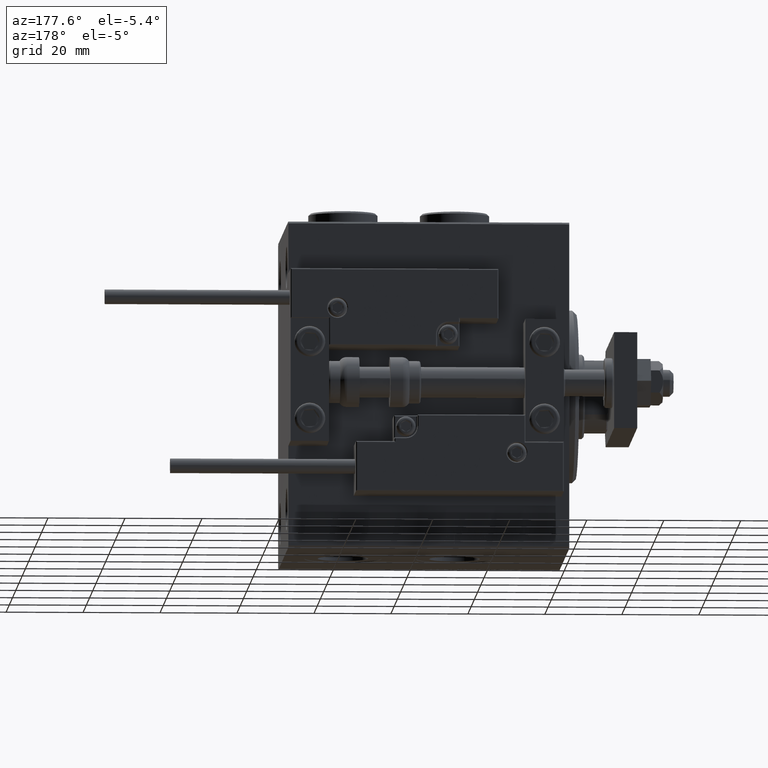
[diagram: clean part render]
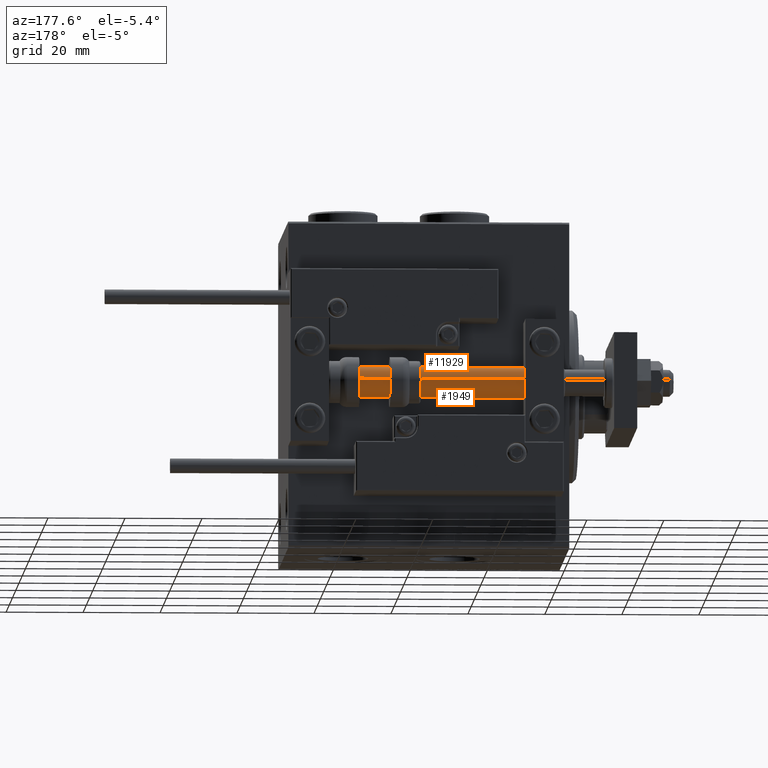
[diagram: same view with one multi-face feature highlighted, each face labeled with its STEP entity id]
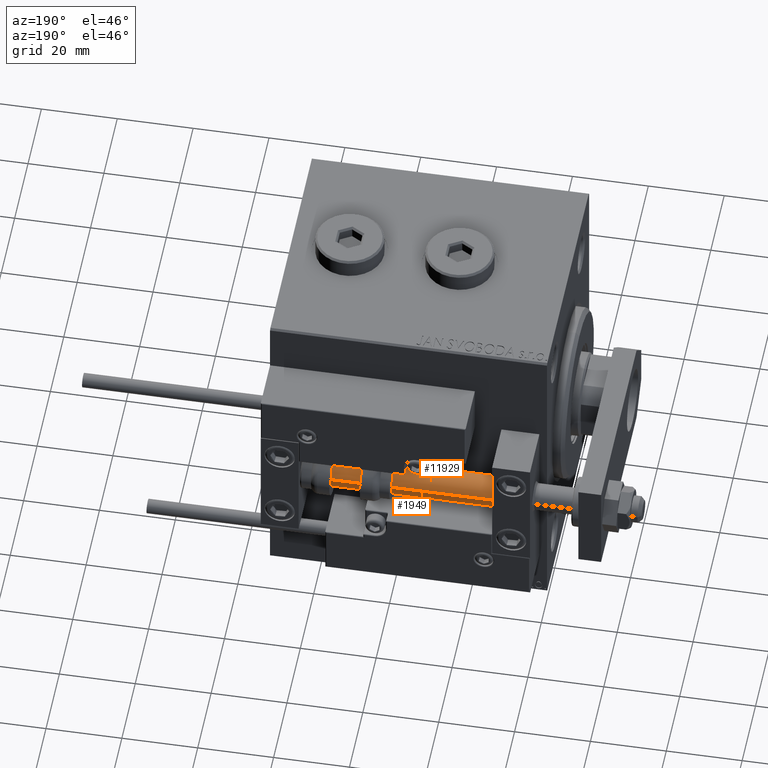
[diagram: same view with one multi-face feature highlighted, each face labeled with its STEP entity id]
A machine part, auxiliary view. The highlighted faces form ONE feature: a constant-radius fillet chain: 2 tangent blend faces with common blend radius 4 mm. The faces share edges in the B-rep.
A second angle (auxiliary view) of the same feature is appended — it is thin or edge-on in the first view.
Their STEP definitions:
[1] entity #11929 (Cylinder):
#3 = LINE ( 'NONE', #32289, #14852 ) ;
#456 = AXIS2_PLACEMENT_3D ( 'NONE', #25503, #30007, #41430 ) ;
#2133 = CIRCLE ( 'NONE', #38507, 4.000000000000000000 ) ;
#4091 = CIRCLE ( 'NONE', #43854, 4.000000000000000000 ) ;
#8215 = DIRECTION ( 'NONE',  ( -0.000000000000000000, -0.000000000000000000, -1.000000000000000000 ) ) ;
#8926 = VERTEX_POINT ( 'NONE', #36565 ) ;
#9206 = ORIENTED_EDGE ( 'NONE', *, *, #40941, .F. ) ;
#9360 = FACE_OUTER_BOUND ( 'NONE', #49487, .T. ) ;
#11849 = EDGE_CURVE ( 'NONE', #8926, #52331, #2133, .T. ) ;
#11929 = ADVANCED_FACE ( 'NONE', ( #9360 ), #29740, .T. ) ;
#11998 = DIRECTION ( 'NONE',  ( -0.000000000000000000, -0.000000000000000000, 1.000000000000000000 ) ) ;
#14852 = VECTOR ( 'NONE', #8215, 1000.000000000000000 ) ;
#15983 = CARTESIAN_POINT ( 'NONE',  ( 0.000000000000000000, 0.000000000000000000, 2.000000000000029310 ) ) ;
#18795 = VERTEX_POINT ( 'NONE', #44053 ) ;
#19103 = CARTESIAN_POINT ( 'NONE',  ( 0.000000000000000000, 0.000000000000000000, 73.00000000000000000 ) ) ;
#20075 = CARTESIAN_POINT ( 'NONE',  ( -4.000000000000000000, 0.000000000000000000, 2.000000000000029310 ) ) ;
#24339 = CARTESIAN_POINT ( 'NONE',  ( 4.000000000000000000, 4.898587196589412829E-16, 73.00000000000000000 ) ) ;
#25503 = CARTESIAN_POINT ( 'NONE',  ( 0.000000000000000000, 0.000000000000000000, 73.00000000000000000 ) ) ;
#26677 = VECTOR ( 'NONE', #28311, 1000.000000000000000 ) ;
#28172 = DIRECTION ( 'NONE',  ( 1.000000000000000000, 0.000000000000000000, 0.000000000000000000 ) ) ;
#28311 = DIRECTION ( 'NONE',  ( -0.000000000000000000, -0.000000000000000000, -1.000000000000000000 ) ) ;
#29740 = CYLINDRICAL_SURFACE ( 'NONE', #456, 4.000000000000000000 ) ;
#30007 = DIRECTION ( 'NONE',  ( -0.000000000000000000, -0.000000000000000000, -1.000000000000000000 ) ) ;
#30160 = EDGE_CURVE ( 'NONE', #40405, #8926, #43977, .T. ) ;
#30710 = CARTESIAN_POINT ( 'NONE',  ( 4.000000000000000000, 4.898587196589412829E-16, 73.00000000000000000 ) ) ;
#32289 = CARTESIAN_POINT ( 'NONE',  ( -4.000000000000000000, 0.000000000000000000, 73.00000000000000000 ) ) ;
#33417 = ORIENTED_EDGE ( 'NONE', *, *, #30160, .T. ) ;
#35111 = EDGE_CURVE ( 'NONE', #18795, #52331, #3, .T. ) ;
#36072 = DIRECTION ( 'NONE',  ( 1.000000000000000000, 0.000000000000000000, 0.000000000000000000 ) ) ;
#36565 = CARTESIAN_POINT ( 'NONE',  ( 4.000000000000000000, 4.898587196589412829E-16, 2.000000000000029310 ) ) ;
#37041 = ORIENTED_EDGE ( 'NONE', *, *, #35111, .F. ) ;
#38507 = AXIS2_PLACEMENT_3D ( 'NONE', #15983, #11998, #28172 ) ;
#40405 = VERTEX_POINT ( 'NONE', #30710 ) ;
#40941 = EDGE_CURVE ( 'NONE', #40405, #18795, #4091, .T. ) ;
#41430 = DIRECTION ( 'NONE',  ( -1.000000000000000000, 0.000000000000000000, 0.000000000000000000 ) ) ;
#42191 = ORIENTED_EDGE ( 'NONE', *, *, #11849, .T. ) ;
#43854 = AXIS2_PLACEMENT_3D ( 'NONE', #19103, #50154, #36072 ) ;
#43977 = LINE ( 'NONE', #24339, #26677 ) ;
#44053 = CARTESIAN_POINT ( 'NONE',  ( -4.000000000000000000, 0.000000000000000000, 73.00000000000000000 ) ) ;
#49487 = EDGE_LOOP ( 'NONE', ( #9206, #33417, #42191, #37041 ) ) ;
#50154 = DIRECTION ( 'NONE',  ( 0.000000000000000000, 0.000000000000000000, 1.000000000000000000 ) ) ;
#52331 = VERTEX_POINT ( 'NONE', #20075 ) ;
[2] entity #1949 (Cylinder):
#3 = LINE ( 'NONE', #32289, #14852 ) ;
#1909 = AXIS2_PLACEMENT_3D ( 'NONE', #27515, #11605, #7127 ) ;
#1949 = ADVANCED_FACE ( 'NONE', ( #35209 ), #43420, .T. ) ;
#2708 = EDGE_CURVE ( 'NONE', #52331, #8926, #16240, .T. ) ;
#4986 = DIRECTION ( 'NONE',  ( -0.000000000000000000, -0.000000000000000000, 1.000000000000000000 ) ) ;
#6977 = ORIENTED_EDGE ( 'NONE', *, *, #35111, .T. ) ;
#7127 = DIRECTION ( 'NONE',  ( -1.000000000000000000, 0.000000000000000000, 0.000000000000000000 ) ) ;
#8215 = DIRECTION ( 'NONE',  ( -0.000000000000000000, -0.000000000000000000, -1.000000000000000000 ) ) ;
#8926 = VERTEX_POINT ( 'NONE', #36565 ) ;
#9849 = AXIS2_PLACEMENT_3D ( 'NONE', #17661, #30893, #10767 ) ;
#10767 = DIRECTION ( 'NONE',  ( 1.000000000000000000, 0.000000000000000000, 0.000000000000000000 ) ) ;
#11605 = DIRECTION ( 'NONE',  ( -0.000000000000000000, -0.000000000000000000, -1.000000000000000000 ) ) ;
#14852 = VECTOR ( 'NONE', #8215, 1000.000000000000000 ) ;
#16240 = CIRCLE ( 'NONE', #22189, 4.000000000000000000 ) ;
#16630 = CARTESIAN_POINT ( 'NONE',  ( 0.000000000000000000, 0.000000000000000000, 2.000000000000029310 ) ) ;
#17661 = CARTESIAN_POINT ( 'NONE',  ( 0.000000000000000000, 0.000000000000000000, 73.00000000000000000 ) ) ;
#18795 = VERTEX_POINT ( 'NONE', #44053 ) ;
#20075 = CARTESIAN_POINT ( 'NONE',  ( -4.000000000000000000, 0.000000000000000000, 2.000000000000029310 ) ) ;
#22189 = AXIS2_PLACEMENT_3D ( 'NONE', #16630, #4986, #32529 ) ;
#24339 = CARTESIAN_POINT ( 'NONE',  ( 4.000000000000000000, 4.898587196589412829E-16, 73.00000000000000000 ) ) ;
#25913 = CIRCLE ( 'NONE', #9849, 4.000000000000000000 ) ;
#26520 = ORIENTED_EDGE ( 'NONE', *, *, #30160, .F. ) ;
#26677 = VECTOR ( 'NONE', #28311, 1000.000000000000000 ) ;
#27515 = CARTESIAN_POINT ( 'NONE',  ( 0.000000000000000000, 0.000000000000000000, 73.00000000000000000 ) ) ;
#28311 = DIRECTION ( 'NONE',  ( -0.000000000000000000, -0.000000000000000000, -1.000000000000000000 ) ) ;
#30160 = EDGE_CURVE ( 'NONE', #40405, #8926, #43977, .T. ) ;
#30710 = CARTESIAN_POINT ( 'NONE',  ( 4.000000000000000000, 4.898587196589412829E-16, 73.00000000000000000 ) ) ;
#30893 = DIRECTION ( 'NONE',  ( 0.000000000000000000, 0.000000000000000000, 1.000000000000000000 ) ) ;
#32242 = ORIENTED_EDGE ( 'NONE', *, *, #2708, .T. ) ;
#32289 = CARTESIAN_POINT ( 'NONE',  ( -4.000000000000000000, 0.000000000000000000, 73.00000000000000000 ) ) ;
#32529 = DIRECTION ( 'NONE',  ( 1.000000000000000000, 0.000000000000000000, 0.000000000000000000 ) ) ;
#34363 = EDGE_LOOP ( 'NONE', ( #26520, #42132, #6977, #32242 ) ) ;
#35111 = EDGE_CURVE ( 'NONE', #18795, #52331, #3, .T. ) ;
#35209 = FACE_OUTER_BOUND ( 'NONE', #34363, .T. ) ;
#36565 = CARTESIAN_POINT ( 'NONE',  ( 4.000000000000000000, 4.898587196589412829E-16, 2.000000000000029310 ) ) ;
#36656 = EDGE_CURVE ( 'NONE', #18795, #40405, #25913, .T. ) ;
#40405 = VERTEX_POINT ( 'NONE', #30710 ) ;
#42132 = ORIENTED_EDGE ( 'NONE', *, *, #36656, .F. ) ;
#43420 = CYLINDRICAL_SURFACE ( 'NONE', #1909, 4.000000000000000000 ) ;
#43977 = LINE ( 'NONE', #24339, #26677 ) ;
#44053 = CARTESIAN_POINT ( 'NONE',  ( -4.000000000000000000, 0.000000000000000000, 73.00000000000000000 ) ) ;
#52331 = VERTEX_POINT ( 'NONE', #20075 ) ;